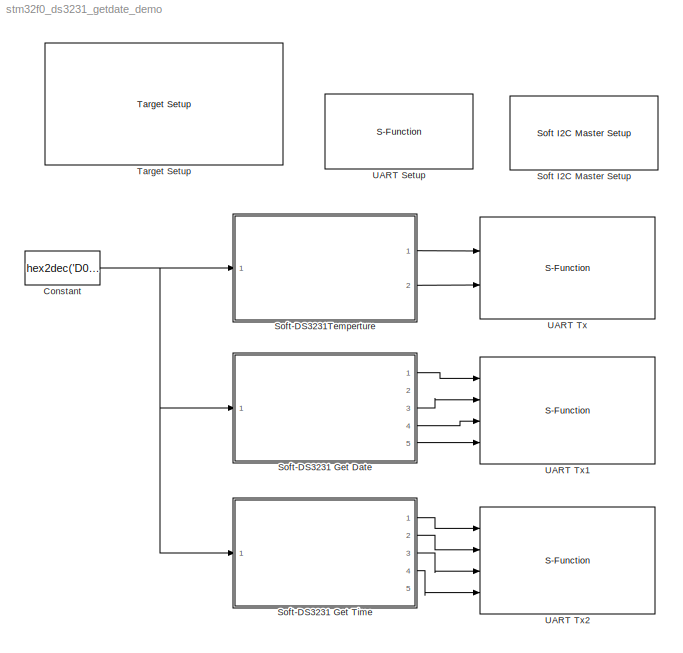
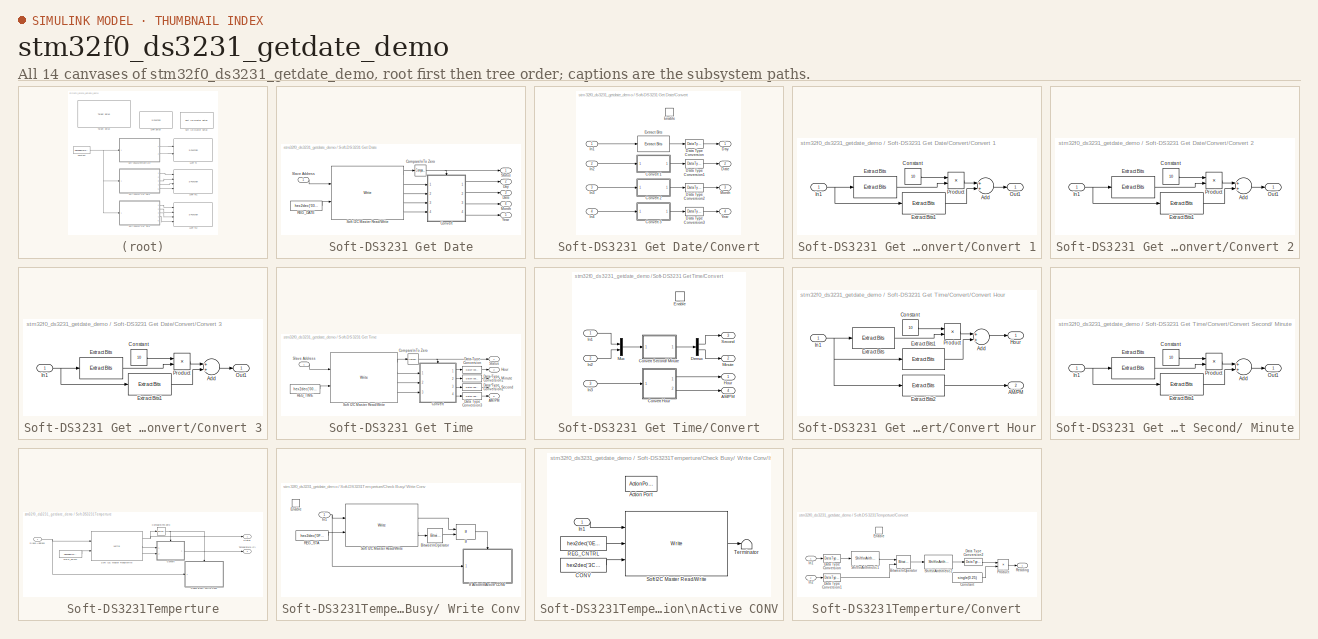
[diagram: thumbnail index - all 14 canvases of the model, root first then tree order]
MODEL stm32f0_ds3231_getdate_demo
KIND model
CONFIG PreLoadFcn = waijung.modelPreload; % Required for working with Waijung Blockset. Do not remove.
BLOCK [Constant] Constant
  OutDataType = fixdt(1, 16)
  OutDataTypeMode = uint8
  OutDataTypeStr = uint8
  OutScaling = 2^0
  SampleTime = 1
  Value = hex2dec('D0')
BLOCK [Reference] Soft I2C Master Setup  REF=waijung_soft_i2c_lib/Soft I2C Master Setup
  Ports = []
  SourceBlock = waijung_soft_i2c_lib/Soft I2C Master Setup
  SourceType = waijung_soft_i2c
  blockid = SoftI2CMasterSetup
  clk = 100
  compat = 0
  conf = Setup
  forcestop = off
  inputportlabel = {}
  inputporttype = []
  inputportwidth = []
  module = 1
  optionstring = [\"1\",\"100000\",\"9\",\"5\",\"4\",\"2\",\"25\",\"\",\"\",\"\",\"0\",\"1\",\"0\",\"0\",\"0\",\"0\",\"0\",\"0\",\"0\",\"\",\"1\",\"B\",\"7\",\"B\",\"6\"]
  outputportlabel = {}
  outputporttype = []
  outputportwidth = []
  portpinstr = 0
  readcount = 1
  sampletime = -1
  sclpins = 'B6'
  sdapins = 'B7'
  targetname = stm32f0
  timeout = 25
  transfer = Blocking
  waittime = 0
  writecount = 1
BLOCK [SubSystem] Soft-DS3231 Get Date
  FunctionWithSeparateData = off
  MaskCallbackString = |amg_high_precision_rtc_callback('module');
  MaskDisplay = text(0.5, 0.5, 'Port: I2C1','ver','middle','hor','center');port_label('input', 1,'SlvAddr');port_label('output', 1,'Status');port_label('output', 2,'Day(1-7)');port_label('output', 3,'Date(1-31)');port_label('output', 4,'Month(1-12)');port_label('output', 5,'Year(0-99)');
  MaskEnableString = on,on
  MaskHelp = web(fullfile(waijungdocroot,'DS3231_Get_Date.htm'), '-browser')
  MaskHideContents = off
  MaskIconFrame = on
  MaskIconOpaque = on
  MaskIconRotate = none
  MaskIconUnits = normalized
  MaskInitialization = amg_high_precision_rtc_callback('init');\n
  MaskPortRotate = default
  MaskPromptString = Function|I2C module
  MaskSelfModifiable = on
  MaskStyleString = popup(temp|time|date),popup(1|2|3|4|5|6|7|8|9|10|11|12|13|14|15|16|17|18|19|20|21|22|23|24|25|26|27|28|29|30|31|32)
  MaskTabNameString = ,
  MaskToolTipString = on,on
  MaskTunableValueString = on,on
  MaskType = amg_high_precision_rtc
  MaskValueString = date|1
  MaskVarAliasString = ,
  MaskVariables = blockfunction=@1;module=@2;
  MaskVisibilityString = off,on
  MinAlgLoopOccurrences = off
  Opaque = off
  Ports = [1, 5]
  PropExecContextOutsideSubsystem = off
  RTWSystemCode = Auto
  RequestExecContextInheritance = off
  ShowPortLabels = FromPortBlockName
BLOCK [Reference] Soft-DS3231 Get Date/Compare\nTo Zero  REF=simulink/Logic and Bit\nOperations/Compare\nTo Zero
  FunctionWithSeparateData = off
  LogicOutDataTypeMode = uint8
  Ports = [1, 1]
  RTWMemSecDataConstants = Inherit from model
  RTWMemSecDataInternal = Inherit from model
  RTWMemSecDataParameters = Inherit from model
  RTWMemSecFuncExecute = Inherit from model
  RTWMemSecFuncInitTerm = Inherit from model
  ShowPortLabels = FromPortIcon
  SourceBlock = simulink/Logic and Bit\nOperations/Compare\nTo Zero
  SourceType = Compare To Zero
  SystemSampleTime = -1
  ZeroCross = off
  relop = ==
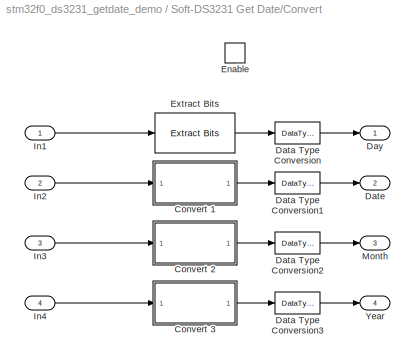
BLOCK [SubSystem] Soft-DS3231 Get Date/Convert
  FunctionWithSeparateData = off
  MaskHideContents = off
  MinAlgLoopOccurrences = off
  Opaque = off
  Ports = [4, 4, 1]
  PropExecContextOutsideSubsystem = off
  RTWSystemCode = Auto
  RequestExecContextInheritance = off
  TreatAsAtomicUnit = on
BLOCK [SubSystem] Soft-DS3231 Get Date/Convert/Convert 1
  FunctionWithSeparateData = off
  MaskHideContents = off
  MinAlgLoopOccurrences = off
  Opaque = off
  Ports = [1, 1]
  PropExecContextOutsideSubsystem = off
  RTWSystemCode = Auto
  RequestExecContextInheritance = off
BLOCK [Sum] Soft-DS3231 Get Date/Convert/Convert 1/Add
  InputSameDT = off
  OutDataType = fixdt(1, 16)
  OutDataTypeMode = Inherit via internal rule
  OutDataTypeStr = Inherit: Inherit via internal rule
  OutScaling = 2^-10
  Ports = [2, 1]
  SaturateOnIntegerOverflow = off
BLOCK [Constant] Soft-DS3231 Get Date/Convert/Convert 1/Constant
  OutDataType = fixdt(1, 16)
  OutDataTypeMode = uint8
  OutDataTypeStr = uint8
  OutScaling = 2^0
  Value = 10
BLOCK [Reference] Soft-DS3231 Get Date/Convert/Convert 1/Extract Bits  REF=simulink/Logic and Bit\nOperations/Extract Bits
  FunctionWithSeparateData = off
  Ports = [1, 1]
  RTWMemSecDataConstants = Inherit from model
  RTWMemSecDataInternal = Inherit from model
  RTWMemSecDataParameters = Inherit from model
  RTWMemSecFuncExecute = Inherit from model
  RTWMemSecFuncInitTerm = Inherit from model
  ShowPortLabels = FromPortIcon
  SourceBlock = simulink/Logic and Bit\nOperations/Extract Bits
  SourceType = Extract Bits
  SystemSampleTime = -1
  bitIdxRange = [4 5]
  bitsToExtract = Range of bits
  numBits = 8
  outScalingMode = Treat bit field as an integer
BLOCK [Reference] Soft-DS3231 Get Date/Convert/Convert 1/Extract Bits1  REF=simulink/Logic and Bit\nOperations/Extract Bits
  FunctionWithSeparateData = off
  Ports = [1, 1]
  RTWMemSecDataConstants = Inherit from model
  RTWMemSecDataInternal = Inherit from model
  RTWMemSecDataParameters = Inherit from model
  RTWMemSecFuncExecute = Inherit from model
  RTWMemSecFuncInitTerm = Inherit from model
  ShowPortLabels = FromPortIcon
  SourceBlock = simulink/Logic and Bit\nOperations/Extract Bits
  SourceType = Extract Bits
  SystemSampleTime = -1
  bitIdxRange = [0 3]
  bitsToExtract = Range of bits
  numBits = 8
  outScalingMode = Treat bit field as an integer
BLOCK [Inport] Soft-DS3231 Get Date/Convert/Convert 1/In1
  IconDisplay = Port number
BLOCK [Outport] Soft-DS3231 Get Date/Convert/Convert 1/Out1
  IconDisplay = Port number
BLOCK [Product] Soft-DS3231 Get Date/Convert/Convert 1/Product
  InputSameDT = off
  OutDataType = fixdt(1, 16)
  OutDataTypeMode = Inherit via internal rule
  OutDataTypeStr = Inherit: Inherit via internal rule
  OutScaling = 2^0
  Ports = [2, 1]
  SaturateOnIntegerOverflow = off
BLOCK [SubSystem] Soft-DS3231 Get Date/Convert/Convert 2
  FunctionWithSeparateData = off
  MaskHideContents = off
  MinAlgLoopOccurrences = off
  Opaque = off
  Ports = [1, 1]
  PropExecContextOutsideSubsystem = off
  RTWSystemCode = Auto
  RequestExecContextInheritance = off
BLOCK [Sum] Soft-DS3231 Get Date/Convert/Convert 2/Add
  InputSameDT = off
  OutDataType = fixdt(1, 16)
  OutDataTypeMode = Inherit via internal rule
  OutDataTypeStr = Inherit: Inherit via internal rule
  OutScaling = 2^-10
  Ports = [2, 1]
  SaturateOnIntegerOverflow = off
BLOCK [Constant] Soft-DS3231 Get Date/Convert/Convert 2/Constant
  OutDataType = fixdt(1, 16)
  OutDataTypeMode = uint8
  OutDataTypeStr = uint8
  OutScaling = 2^0
  Value = 10
BLOCK [Reference] Soft-DS3231 Get Date/Convert/Convert 2/Extract Bits  REF=simulink/Logic and Bit\nOperations/Extract Bits
  FunctionWithSeparateData = off
  Ports = [1, 1]
  RTWMemSecDataConstants = Inherit from model
  RTWMemSecDataInternal = Inherit from model
  RTWMemSecDataParameters = Inherit from model
  RTWMemSecFuncExecute = Inherit from model
  RTWMemSecFuncInitTerm = Inherit from model
  ShowPortLabels = FromPortIcon
  SourceBlock = simulink/Logic and Bit\nOperations/Extract Bits
  SourceType = Extract Bits
  SystemSampleTime = -1
  bitIdxRange = [4 4]
  bitsToExtract = Range of bits
  numBits = 8
  outScalingMode = Treat bit field as an integer
BLOCK [Reference] Soft-DS3231 Get Date/Convert/Convert 2/Extract Bits1  REF=simulink/Logic and Bit\nOperations/Extract Bits
  FunctionWithSeparateData = off
  Ports = [1, 1]
  RTWMemSecDataConstants = Inherit from model
  RTWMemSecDataInternal = Inherit from model
  RTWMemSecDataParameters = Inherit from model
  RTWMemSecFuncExecute = Inherit from model
  RTWMemSecFuncInitTerm = Inherit from model
  ShowPortLabels = FromPortIcon
  SourceBlock = simulink/Logic and Bit\nOperations/Extract Bits
  SourceType = Extract Bits
  SystemSampleTime = -1
  bitIdxRange = [0 3]
  bitsToExtract = Range of bits
  numBits = 8
  outScalingMode = Treat bit field as an integer
BLOCK [Inport] Soft-DS3231 Get Date/Convert/Convert 2/In1
  IconDisplay = Port number
BLOCK [Outport] Soft-DS3231 Get Date/Convert/Convert 2/Out1
  IconDisplay = Port number
BLOCK [Product] Soft-DS3231 Get Date/Convert/Convert 2/Product
  InputSameDT = off
  OutDataType = fixdt(1, 16)
  OutDataTypeMode = Inherit via internal rule
  OutDataTypeStr = Inherit: Inherit via internal rule
  OutScaling = 2^0
  Ports = [2, 1]
  SaturateOnIntegerOverflow = off
BLOCK [SubSystem] Soft-DS3231 Get Date/Convert/Convert 3
  FunctionWithSeparateData = off
  MaskHideContents = off
  MinAlgLoopOccurrences = off
  Opaque = off
  Ports = [1, 1]
  PropExecContextOutsideSubsystem = off
  RTWSystemCode = Auto
  RequestExecContextInheritance = off
BLOCK [Sum] Soft-DS3231 Get Date/Convert/Convert 3/Add
  InputSameDT = off
  OutDataType = fixdt(1, 16)
  OutDataTypeMode = Inherit via internal rule
  OutDataTypeStr = Inherit: Inherit via internal rule
  OutScaling = 2^-10
  Ports = [2, 1]
  SaturateOnIntegerOverflow = off
BLOCK [Constant] Soft-DS3231 Get Date/Convert/Convert 3/Constant
  OutDataType = fixdt(1, 16)
  OutDataTypeMode = uint8
  OutDataTypeStr = uint8
  OutScaling = 2^0
  Value = 10
BLOCK [Reference] Soft-DS3231 Get Date/Convert/Convert 3/Extract Bits  REF=simulink/Logic and Bit\nOperations/Extract Bits
  FunctionWithSeparateData = off
  Ports = [1, 1]
  RTWMemSecDataConstants = Inherit from model
  RTWMemSecDataInternal = Inherit from model
  RTWMemSecDataParameters = Inherit from model
  RTWMemSecFuncExecute = Inherit from model
  RTWMemSecFuncInitTerm = Inherit from model
  ShowPortLabels = FromPortIcon
  SourceBlock = simulink/Logic and Bit\nOperations/Extract Bits
  SourceType = Extract Bits
  SystemSampleTime = -1
  bitIdxRange = [4 7]
  bitsToExtract = Range of bits
  numBits = 8
  outScalingMode = Treat bit field as an integer
BLOCK [Reference] Soft-DS3231 Get Date/Convert/Convert 3/Extract Bits1  REF=simulink/Logic and Bit\nOperations/Extract Bits
  FunctionWithSeparateData = off
  Ports = [1, 1]
  RTWMemSecDataConstants = Inherit from model
  RTWMemSecDataInternal = Inherit from model
  RTWMemSecDataParameters = Inherit from model
  RTWMemSecFuncExecute = Inherit from model
  RTWMemSecFuncInitTerm = Inherit from model
  ShowPortLabels = FromPortIcon
  SourceBlock = simulink/Logic and Bit\nOperations/Extract Bits
  SourceType = Extract Bits
  SystemSampleTime = -1
  bitIdxRange = [0 3]
  bitsToExtract = Range of bits
  numBits = 8
  outScalingMode = Treat bit field as an integer
BLOCK [Inport] Soft-DS3231 Get Date/Convert/Convert 3/In1
  IconDisplay = Port number
BLOCK [Outport] Soft-DS3231 Get Date/Convert/Convert 3/Out1
  IconDisplay = Port number
BLOCK [Product] Soft-DS3231 Get Date/Convert/Convert 3/Product
  InputSameDT = off
  OutDataType = fixdt(1, 16)
  OutDataTypeMode = Inherit via internal rule
  OutDataTypeStr = Inherit: Inherit via internal rule
  OutScaling = 2^0
  Ports = [2, 1]
  SaturateOnIntegerOverflow = off
BLOCK [DataTypeConversion] Soft-DS3231 Get Date/Convert/Data Type Conversion
  OutDataType = fixdt(1, 16)
  OutDataTypeMode = uint8
  OutDataTypeStr = uint8
  OutScaling = 2^0
  RndMeth = Floor
  SaturateOnIntegerOverflow = off
BLOCK [DataTypeConversion] Soft-DS3231 Get Date/Convert/Data Type Conversion1
  OutDataType = fixdt(1, 16)
  OutDataTypeMode = uint8
  OutDataTypeStr = uint8
  OutScaling = 2^0
  RndMeth = Floor
  SaturateOnIntegerOverflow = off
BLOCK [DataTypeConversion] Soft-DS3231 Get Date/Convert/Data Type Conversion2
  OutDataType = fixdt(1, 16)
  OutDataTypeMode = uint8
  OutDataTypeStr = uint8
  OutScaling = 2^0
  RndMeth = Floor
  SaturateOnIntegerOverflow = off
BLOCK [DataTypeConversion] Soft-DS3231 Get Date/Convert/Data Type Conversion3
  OutDataType = fixdt(1, 16)
  OutDataTypeMode = uint8
  OutDataTypeStr = uint8
  OutScaling = 2^0
  RndMeth = Floor
  SaturateOnIntegerOverflow = off
BLOCK [Outport] Soft-DS3231 Get Date/Convert/Date
  IconDisplay = Port number
  OutDataType = fixdt(1, 16)
  OutScaling = 2^0
  Port = 2
BLOCK [Outport] Soft-DS3231 Get Date/Convert/Day
  IconDisplay = Port number
  OutDataType = fixdt(1, 16)
  OutScaling = 2^0
BLOCK [EnablePort] Soft-DS3231 Get Date/Convert/Enable
  Ports = []
BLOCK [Reference] Soft-DS3231 Get Date/Convert/Extract Bits  REF=simulink/Logic and Bit\nOperations/Extract Bits
  FunctionWithSeparateData = off
  Ports = [1, 1]
  RTWMemSecDataConstants = Inherit from model
  RTWMemSecDataInternal = Inherit from model
  RTWMemSecDataParameters = Inherit from model
  RTWMemSecFuncExecute = Inherit from model
  RTWMemSecFuncInitTerm = Inherit from model
  ShowPortLabels = FromPortIcon
  SourceBlock = simulink/Logic and Bit\nOperations/Extract Bits
  SourceType = Extract Bits
  SystemSampleTime = -1
  bitIdxRange = [0 3]
  bitsToExtract = Range of bits
  numBits = 8
  outScalingMode = Treat bit field as an integer
BLOCK [Inport] Soft-DS3231 Get Date/Convert/In1
  IconDisplay = Port number
  OutDataType = fixdt(1, 16)
  OutScaling = 2^0
BLOCK [Inport] Soft-DS3231 Get Date/Convert/In2
  IconDisplay = Port number
  OutDataType = fixdt(1, 16)
  OutScaling = 2^0
  Port = 2
BLOCK [Inport] Soft-DS3231 Get Date/Convert/In3
  IconDisplay = Port number
  OutDataType = fixdt(1, 16)
  OutScaling = 2^0
  Port = 3
BLOCK [Inport] Soft-DS3231 Get Date/Convert/In4
  IconDisplay = Port number
  OutDataType = fixdt(1, 16)
  OutScaling = 2^0
  Port = 4
BLOCK [Outport] Soft-DS3231 Get Date/Convert/Month
  IconDisplay = Port number
  OutDataType = fixdt(1, 16)
  OutScaling = 2^0
  Port = 3
BLOCK [Outport] Soft-DS3231 Get Date/Convert/Year
  IconDisplay = Port number
  OutDataType = fixdt(1, 16)
  OutScaling = 2^0
  Port = 4
BLOCK [Outport] Soft-DS3231 Get Date/Date
  IconDisplay = Port number
  Port = 3
BLOCK [Outport] Soft-DS3231 Get Date/Day
  IconDisplay = Port number
  Port = 2
BLOCK [Outport] Soft-DS3231 Get Date/Month
  IconDisplay = Port number
  Port = 4
BLOCK [Constant] Soft-DS3231 Get Date/REG_DATE
  OutDataType = fixdt(1, 16)
  OutDataTypeMode = uint8
  OutDataTypeStr = uint8
  OutScaling = 2^0
  Value = hex2dec('03')
BLOCK [Inport] Soft-DS3231 Get Date/Slave Address
  IconDisplay = Port number
  OutDataType = fixdt(1, 16)
  OutScaling = 2^0
BLOCK [Reference] Soft-DS3231 Get Date/Soft I2C Master Read//Write  REF=waijung_soft_i2c_lib/Soft I2C Master Read//Write
  Ports = [2, 5]
  SourceBlock = waijung_soft_i2c_lib/Soft I2C Master Read//Write
  SourceType = waijung_soft_i2c
  blockid = SoftDS3231GetDateSoftI2CMasterReadWrite
  clk = 100
  compat = 0
  conf = ReadWrite
  forcestop = off
  inputportlabel = {'SlvAddr' 'Wr0 (uint8)'}
  inputporttype = [3 3]
  inputportwidth = []
  module = 1
  optionstring = [\"1\",\"1\",\"4\",\"0\",\"off\",\"1\"]
  outputportlabel = {'Status' 'Rd0 (uint8)' 'Rd1 (uint8)' 'Rd2 (uint8)' 'Rd3 (uint8)'}
  outputporttype = [3 3 3 3 3    ]
  outputportwidth = [1 1 1 1 1]
  portpinstr = 0
  readcount = 4
  sampletime = -1
  sclpins = 'A5'
  sdapins = {'A4','A6'}
  targetname = stm32f0
  timeout = 25
  transfer = Blocking
  waittime = 0
  writecount = 1
BLOCK [Outport] Soft-DS3231 Get Date/Status
  IconDisplay = Port number
BLOCK [Outport] Soft-DS3231 Get Date/Year
  IconDisplay = Port number
  Port = 5
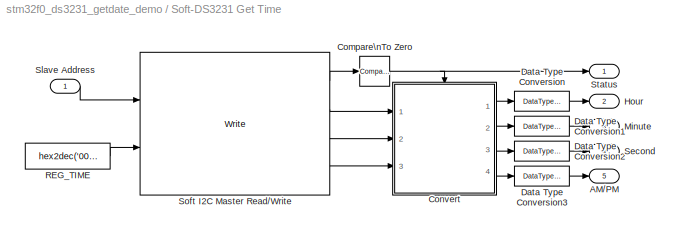
BLOCK [SubSystem] Soft-DS3231 Get Time
  FunctionWithSeparateData = off
  MaskCallbackString = |amg_high_precision_rtc_callback('module');
  MaskDisplay = text(0.5, 0.5, 'Port: I2C1','ver','middle','hor','center');port_label('input', 1,'SlvAddr');port_label('output', 1,'Status');port_label('output', 2,'Hour(0-11/23)');port_label('output', 3,'Minute(0-59)');port_label('output', 4,'Second(0-59)');port_label('output', 5,'AM(0)/PM(1)');
  MaskEnableString = on,on
  MaskHelp = web(fullfile(waijungdocroot,'DS3231_Get_Time.htm'), '-browser')
  MaskHideContents = off
  MaskIconFrame = on
  MaskIconOpaque = on
  MaskIconRotate = none
  MaskIconUnits = normalized
  MaskInitialization = amg_high_precision_rtc_callback('init');\n
  MaskPortRotate = default
  MaskPromptString = Function|I2C module
  MaskSelfModifiable = on
  MaskStyleString = popup(temp|time|date),popup(1|2|3|4|5|6|7|8|9|10|11|12|13|14|15|16|17|18|19|20|21|22|23|24|25|26|27|28|29|30|31|32)
  MaskTabNameString = ,
  MaskToolTipString = on,on
  MaskTunableValueString = on,on
  MaskType = amg_high_precision_rtc
  MaskValueString = time|1
  MaskVarAliasString = ,
  MaskVariables = blockfunction=@1;module=@2;
  MaskVisibilityString = off,on
  MinAlgLoopOccurrences = off
  Opaque = off
  Ports = [1, 5]
  PropExecContextOutsideSubsystem = off
  RTWSystemCode = Auto
  RequestExecContextInheritance = off
  ShowPortLabels = FromPortBlockName
BLOCK [Outport] Soft-DS3231 Get Time/AM//PM
  IconDisplay = Port number
  Port = 5
BLOCK [Reference] Soft-DS3231 Get Time/Compare\nTo Zero  REF=simulink/Logic and Bit\nOperations/Compare\nTo Zero
  FunctionWithSeparateData = off
  LogicOutDataTypeMode = uint8
  Ports = [1, 1]
  RTWMemSecDataConstants = Inherit from model
  RTWMemSecDataInternal = Inherit from model
  RTWMemSecDataParameters = Inherit from model
  RTWMemSecFuncExecute = Inherit from model
  RTWMemSecFuncInitTerm = Inherit from model
  ShowPortLabels = FromPortIcon
  SourceBlock = simulink/Logic and Bit\nOperations/Compare\nTo Zero
  SourceType = Compare To Zero
  SystemSampleTime = -1
  ZeroCross = off
  relop = ==
BLOCK [SubSystem] Soft-DS3231 Get Time/Convert
  FunctionWithSeparateData = off
  MaskHideContents = off
  MinAlgLoopOccurrences = off
  Opaque = off
  Ports = [3, 4, 1]
  PropExecContextOutsideSubsystem = off
  RTWSystemCode = Auto
  RequestExecContextInheritance = off
  TreatAsAtomicUnit = on
BLOCK [Outport] Soft-DS3231 Get Time/Convert/AM//PM
  IconDisplay = Port number
  OutDataType = fixdt(1, 16)
  OutScaling = 2^0
  Port = 4
BLOCK [SubSystem] Soft-DS3231 Get Time/Convert/Convert Hour
  FunctionWithSeparateData = off
  MaskHideContents = off
  MinAlgLoopOccurrences = off
  Opaque = off
  Ports = [1, 2]
  PropExecContextOutsideSubsystem = off
  RTWSystemCode = Auto
  RequestExecContextInheritance = off
BLOCK [Outport] Soft-DS3231 Get Time/Convert/Convert Hour/AM//PM
  IconDisplay = Port number
  Port = 2
BLOCK [Sum] Soft-DS3231 Get Time/Convert/Convert Hour/Add
  InputSameDT = off
  OutDataType = fixdt(1, 16)
  OutDataTypeMode = Inherit via internal rule
  OutDataTypeStr = Inherit: Inherit via internal rule
  OutScaling = 2^-10
  Ports = [2, 1]
  SaturateOnIntegerOverflow = off
BLOCK [Constant] Soft-DS3231 Get Time/Convert/Convert Hour/Constant
  OutDataType = fixdt(1, 16)
  OutDataTypeMode = uint8
  OutDataTypeStr = uint8
  OutScaling = 2^0
  Value = 10
BLOCK [Reference] Soft-DS3231 Get Time/Convert/Convert Hour/Extract Bits  REF=simulink/Logic and Bit\nOperations/Extract Bits
  FunctionWithSeparateData = off
  Ports = [1, 1]
  RTWMemSecDataConstants = Inherit from model
  RTWMemSecDataInternal = Inherit from model
  RTWMemSecDataParameters = Inherit from model
  RTWMemSecFuncExecute = Inherit from model
  RTWMemSecFuncInitTerm = Inherit from model
  ShowPortLabels = FromPortIcon
  SourceBlock = simulink/Logic and Bit\nOperations/Extract Bits
  SourceType = Extract Bits
  SystemSampleTime = -1
  bitIdxRange = [4 5]
  bitsToExtract = Range of bits
  numBits = 8
  outScalingMode = Treat bit field as an integer
BLOCK [Reference] Soft-DS3231 Get Time/Convert/Convert Hour/Extract Bits1  REF=simulink/Logic and Bit\nOperations/Extract Bits
  FunctionWithSeparateData = off
  Ports = [1, 1]
  RTWMemSecDataConstants = Inherit from model
  RTWMemSecDataInternal = Inherit from model
  RTWMemSecDataParameters = Inherit from model
  RTWMemSecFuncExecute = Inherit from model
  RTWMemSecFuncInitTerm = Inherit from model
  ShowPortLabels = FromPortIcon
  SourceBlock = simulink/Logic and Bit\nOperations/Extract Bits
  SourceType = Extract Bits
  SystemSampleTime = -1
  bitIdxRange = [0 3]
  bitsToExtract = Range of bits
  numBits = 8
  outScalingMode = Treat bit field as an integer
BLOCK [Reference] Soft-DS3231 Get Time/Convert/Convert Hour/Extract Bits2  REF=simulink/Logic and Bit\nOperations/Extract Bits
  FunctionWithSeparateData = off
  Ports = [1, 1]
  RTWMemSecDataConstants = Inherit from model
  RTWMemSecDataInternal = Inherit from model
  RTWMemSecDataParameters = Inherit from model
  RTWMemSecFuncExecute = Inherit from model
  RTWMemSecFuncInitTerm = Inherit from model
  ShowPortLabels = FromPortIcon
  SourceBlock = simulink/Logic and Bit\nOperations/Extract Bits
  SourceType = Extract Bits
  SystemSampleTime = -1
  bitIdxRange = [5 5]
  bitsToExtract = Range of bits
  numBits = 8
  outScalingMode = Treat bit field as an integer
BLOCK [Outport] Soft-DS3231 Get Time/Convert/Convert Hour/Hour
  IconDisplay = Port number
BLOCK [Inport] Soft-DS3231 Get Time/Convert/Convert Hour/In1
  IconDisplay = Port number
BLOCK [Product] Soft-DS3231 Get Time/Convert/Convert Hour/Product
  InputSameDT = off
  OutDataType = fixdt(1, 16)
  OutDataTypeMode = Inherit via internal rule
  OutDataTypeStr = Inherit: Inherit via internal rule
  OutScaling = 2^0
  Ports = [2, 1]
  SaturateOnIntegerOverflow = off
BLOCK [SubSystem] Soft-DS3231 Get Time/Convert/Convert Second// Minute
  FunctionWithSeparateData = off
  MaskHideContents = off
  MinAlgLoopOccurrences = off
  Opaque = off
  Ports = [1, 1]
  PropExecContextOutsideSubsystem = off
  RTWSystemCode = Auto
  RequestExecContextInheritance = off
BLOCK [Sum] Soft-DS3231 Get Time/Convert/Convert Second// Minute/Add
  InputSameDT = off
  OutDataType = fixdt(1, 16)
  OutDataTypeMode = Inherit via internal rule
  OutDataTypeStr = Inherit: Inherit via internal rule
  OutScaling = 2^-10
  Ports = [2, 1]
  SaturateOnIntegerOverflow = off
BLOCK [Constant] Soft-DS3231 Get Time/Convert/Convert Second// Minute/Constant
  OutDataType = fixdt(1, 16)
  OutDataTypeMode = uint8
  OutDataTypeStr = uint8
  OutScaling = 2^0
  Value = 10
BLOCK [Reference] Soft-DS3231 Get Time/Convert/Convert Second// Minute/Extract Bits  REF=simulink/Logic and Bit\nOperations/Extract Bits
  FunctionWithSeparateData = off
  Ports = [1, 1]
  RTWMemSecDataConstants = Inherit from model
  RTWMemSecDataInternal = Inherit from model
  RTWMemSecDataParameters = Inherit from model
  RTWMemSecFuncExecute = Inherit from model
  RTWMemSecFuncInitTerm = Inherit from model
  ShowPortLabels = FromPortIcon
  SourceBlock = simulink/Logic and Bit\nOperations/Extract Bits
  SourceType = Extract Bits
  SystemSampleTime = -1
  bitIdxRange = [4 6]
  bitsToExtract = Range of bits
  numBits = 8
  outScalingMode = Treat bit field as an integer
BLOCK [Reference] Soft-DS3231 Get Time/Convert/Convert Second// Minute/Extract Bits1  REF=simulink/Logic and Bit\nOperations/Extract Bits
  FunctionWithSeparateData = off
  Ports = [1, 1]
  RTWMemSecDataConstants = Inherit from model
  RTWMemSecDataInternal = Inherit from model
  RTWMemSecDataParameters = Inherit from model
  RTWMemSecFuncExecute = Inherit from model
  RTWMemSecFuncInitTerm = Inherit from model
  ShowPortLabels = FromPortIcon
  SourceBlock = simulink/Logic and Bit\nOperations/Extract Bits
  SourceType = Extract Bits
  SystemSampleTime = -1
  bitIdxRange = [0 3]
  bitsToExtract = Range of bits
  numBits = 8
  outScalingMode = Treat bit field as an integer
BLOCK [Inport] Soft-DS3231 Get Time/Convert/Convert Second// Minute/In1
  IconDisplay = Port number
BLOCK [Outport] Soft-DS3231 Get Time/Convert/Convert Second// Minute/Out1
  IconDisplay = Port number
BLOCK [Product] Soft-DS3231 Get Time/Convert/Convert Second// Minute/Product
  InputSameDT = off
  OutDataType = fixdt(1, 16)
  OutDataTypeMode = Inherit via internal rule
  OutDataTypeStr = Inherit: Inherit via internal rule
  OutScaling = 2^0
  Ports = [2, 1]
  SaturateOnIntegerOverflow = off
BLOCK [Demux] Soft-DS3231 Get Time/Convert/Demux
  DisplayOption = bar
  Outputs = 2
  Ports = [1, 2]
BLOCK [EnablePort] Soft-DS3231 Get Time/Convert/Enable
  Ports = []
BLOCK [Outport] Soft-DS3231 Get Time/Convert/Hour
  IconDisplay = Port number
  OutDataType = fixdt(1, 16)
  OutScaling = 2^0
BLOCK [Inport] Soft-DS3231 Get Time/Convert/In1
  IconDisplay = Port number
  OutDataType = fixdt(1, 16)
  OutScaling = 2^0
BLOCK [Inport] Soft-DS3231 Get Time/Convert/In2
  IconDisplay = Port number
  OutDataType = fixdt(1, 16)
  OutScaling = 2^0
  Port = 2
BLOCK [Inport] Soft-DS3231 Get Time/Convert/In3
  IconDisplay = Port number
  OutDataType = fixdt(1, 16)
  OutScaling = 2^0
  Port = 3
BLOCK [Outport] Soft-DS3231 Get Time/Convert/Minute
  IconDisplay = Port number
  OutDataType = fixdt(1, 16)
  OutScaling = 2^0
  Port = 2
BLOCK [Mux] Soft-DS3231 Get Time/Convert/Mux
  DisplayOption = bar
  Inputs = 2
  Ports = [2, 1]
BLOCK [Outport] Soft-DS3231 Get Time/Convert/Second
  IconDisplay = Port number
  OutDataType = fixdt(1, 16)
  OutScaling = 2^0
  Port = 3
BLOCK [DataTypeConversion] Soft-DS3231 Get Time/Data Type Conversion
  OutDataType = fixdt(1, 16)
  OutDataTypeMode = uint8
  OutDataTypeStr = uint8
  OutScaling = 2^0
  RndMeth = Floor
  SaturateOnIntegerOverflow = off
BLOCK [DataTypeConversion] Soft-DS3231 Get Time/Data Type Conversion1
  OutDataType = fixdt(1, 16)
  OutDataTypeMode = uint8
  OutDataTypeStr = uint8
  OutScaling = 2^0
  RndMeth = Floor
  SaturateOnIntegerOverflow = off
BLOCK [DataTypeConversion] Soft-DS3231 Get Time/Data Type Conversion2
  OutDataType = fixdt(1, 16)
  OutDataTypeMode = uint8
  OutDataTypeStr = uint8
  OutScaling = 2^0
  RndMeth = Floor
  SaturateOnIntegerOverflow = off
BLOCK [DataTypeConversion] Soft-DS3231 Get Time/Data Type Conversion3
  OutDataType = fixdt(1, 16)
  OutDataTypeMode = uint8
  OutDataTypeStr = uint8
  OutScaling = 2^0
  RndMeth = Floor
  SaturateOnIntegerOverflow = off
BLOCK [Outport] Soft-DS3231 Get Time/Hour
  IconDisplay = Port number
  Port = 2
BLOCK [Outport] Soft-DS3231 Get Time/Minute
  IconDisplay = Port number
  Port = 3
BLOCK [Constant] Soft-DS3231 Get Time/REG_TIME
  OutDataType = fixdt(1, 16)
  OutDataTypeMode = uint8
  OutDataTypeStr = uint8
  OutScaling = 2^0
  Value = hex2dec('00')
BLOCK [Outport] Soft-DS3231 Get Time/Second
  IconDisplay = Port number
  Port = 4
BLOCK [Inport] Soft-DS3231 Get Time/Slave Address
  IconDisplay = Port number
  OutDataType = fixdt(1, 16)
  OutScaling = 2^0
BLOCK [Reference] Soft-DS3231 Get Time/Soft I2C Master Read//Write  REF=waijung_soft_i2c_lib/Soft I2C Master Read//Write
  Ports = [2, 4]
  SourceBlock = waijung_soft_i2c_lib/Soft I2C Master Read//Write
  SourceType = waijung_soft_i2c
  blockid = SoftDS3231GetTimeSoftI2CMasterReadWrite
  clk = 100
  compat = 0
  conf = ReadWrite
  forcestop = off
  inputportlabel = {'SlvAddr' 'Wr0 (uint8)'}
  inputporttype = [3 3]
  inputportwidth = []
  module = 1
  optionstring = [\"1\",\"1\",\"3\",\"0\",\"off\",\"1\"]
  outputportlabel = {'Status' 'Rd0 (uint8)' 'Rd1 (uint8)' 'Rd2 (uint8)'}
  outputporttype = [3 3 3 3   ]
  outputportwidth = [1 1 1 1]
  portpinstr = 0
  readcount = 3
  sampletime = -1
  sclpins = 'A5'
  sdapins = {'A4','A6'}
  targetname = stm32f0
  timeout = 25
  transfer = Blocking
  waittime = 0
  writecount = 1
BLOCK [Outport] Soft-DS3231 Get Time/Status
  IconDisplay = Port number
BLOCK [SubSystem] Soft-DS3231Temperture
  FunctionWithSeparateData = off
  MaskCallbackString = |amg_high_precision_rtc_callback('module');
  MaskDescription = The block implement temperature reading from DS3231 (Extremely Accurate RTC).\nIts override the CONV bit, to force the temperature update, so the recommend sample time for this block is more than 0.5 seconds.\nTo get reading value from DS3231 device, this block generate 3 transaction of I2C as below:\n1. Read 2 bytes data from register 0x11 and 0x12 (Sequential read).\n2. Read 1 byte data from reg...<+119ch>
  MaskDisplay = text(0.5, 0.5, 'Port: I2C1','ver','middle','hor','center');port_label('input', 1,'SlvAddr');port_label('output', 1,'Status');port_label('output', 2,'Temp (C)');
  MaskEnableString = off,on
  MaskHelp = web(fullfile(waijungdocroot,'DS3231Temperture.htm'), '-browser')
  MaskHideContents = off
  MaskIconFrame = on
  MaskIconOpaque = on
  MaskIconRotate = none
  MaskIconUnits = normalized
  MaskInitialization = amg_high_precision_rtc_callback('init');\n
  MaskPortRotate = default
  MaskPromptString = Function|I2C module
  MaskSelfModifiable = on
  MaskStyleString = popup(temp|time|date),popup(1|2|3|4|5|6|7|8|9|10|11|12|13|14|15|16|17|18|19|20|21|22|23|24|25|26|27|28|29|30|31|32)
  MaskTabNameString = ,
  MaskToolTipString = on,on
  MaskTunableValueString = on,on
  MaskType = amg_high_precision_rtc
  MaskValueString = temp|1
  MaskVarAliasString = ,
  MaskVariables = blockfunction=@1;module=@2;
  MaskVisibilityString = off,on
  MinAlgLoopOccurrences = off
  Opaque = off
  Ports = [1, 2]
  PropExecContextOutsideSubsystem = off
  RTWSystemCode = Auto
  RequestExecContextInheritance = off
  ShowPortLabels = FromPortBlockName
BLOCK [SubSystem] Soft-DS3231Temperture/Check Busy// Write Conv
  FunctionWithSeparateData = off
  MaskHideContents = off
  MinAlgLoopOccurrences = off
  Opaque = off
  Ports = [1, 0, 1]
  PropExecContextOutsideSubsystem = off
  RTWSystemCode = Auto
  RequestExecContextInheritance = off
BLOCK [Reference] Soft-DS3231Temperture/Check Busy// Write Conv/Bitwise\nOperator  REF=simulink/Logic and Bit\nOperations/Bitwise\nOperator
  BitMask = hex2dec('04')
  BitMaskRealWorld = Stored Integer
  NumInputPorts = 1
  Ports = [1, 1]
  SourceBlock = simulink/Logic and Bit\nOperations/Bitwise\nOperator
  SourceType = Bitwise Operator
  UseBitMask = on
  logicop = AND
BLOCK [EnablePort] Soft-DS3231Temperture/Check Busy// Write Conv/Enable
  Ports = []
BLOCK [If] Soft-DS3231Temperture/Check Busy// Write Conv/If
  IfExpression = (u1 == 0) & (u2 == 0)
  NumInputs = 2
  Ports = [2, 1]
  ShowElse = off
BLOCK [SubSystem] Soft-DS3231Temperture/Check Busy// Write Conv/If Action\nActive CONV
  FunctionWithSeparateData = off
  MaskHideContents = off
  MinAlgLoopOccurrences = off
  Opaque = off
  Ports = [1, 0, 0, 0, 0, 0, 0, 1]
  PropExecContextOutsideSubsystem = off
  RTWSystemCode = Auto
  RequestExecContextInheritance = off
  TreatAsAtomicUnit = on
BLOCK [ActionPort] Soft-DS3231Temperture/Check Busy// Write Conv/If Action\nActive CONV/Action Port
  ActionType = then
BLOCK [Constant] Soft-DS3231Temperture/Check Busy// Write Conv/If Action\nActive CONV/CONV
  OutDataType = fixdt(1, 16)
  OutDataTypeMode = uint8
  OutDataTypeStr = uint8
  OutScaling = 2^0
  Value = hex2dec('3C')
BLOCK [Inport] Soft-DS3231Temperture/Check Busy// Write Conv/If Action\nActive CONV/In1
  IconDisplay = Port number
  OutDataType = fixdt(1, 16)
  OutScaling = 2^0
BLOCK [Constant] Soft-DS3231Temperture/Check Busy// Write Conv/If Action\nActive CONV/REG_CNTRL
  OutDataType = fixdt(1, 16)
  OutDataTypeMode = uint8
  OutDataTypeStr = uint8
  OutScaling = 2^0
  Value = hex2dec('0E')
BLOCK [Reference] Soft-DS3231Temperture/Check Busy// Write Conv/If Action\nActive CONV/Soft I2C Master Read//Write  REF=waijung_soft_i2c_lib/Soft I2C Master Read//Write
  Ports = [3, 1]
  SourceBlock = waijung_soft_i2c_lib/Soft I2C Master Read//Write
  SourceType = waijung_soft_i2c
  blockid = SoftDS3231TempertureCheckBusyWriteConvIfActionActiveCONVSoftI2CMasterReadWrite
  clk = 100
  compat = 0
  conf = ReadWrite
  forcestop = off
  inputportlabel = {'SlvAddr' 'Wr0 (uint8)' 'Wr1 (uint8)'}
  inputporttype = [3 3 3]
  inputportwidth = []
  module = 1
  optionstring = [\"1\",\"2\",\"0\",\"0\",\"off\",\"1\"]
  outputportlabel = {'Status'}
  outputporttype = [3]
  outputportwidth = [1]
  portpinstr = 0
  readcount = 0
  sampletime = -1
  sclpins = 'A5'
  sdapins = {'A4','A6'}
  targetname = stm32f0
  timeout = 25
  transfer = Blocking
  waittime = 0
  writecount = 2
BLOCK [Terminator] Soft-DS3231Temperture/Check Busy// Write Conv/If Action\nActive CONV/Terminator
BLOCK [Inport] Soft-DS3231Temperture/Check Busy// Write Conv/In1
  IconDisplay = Port number
BLOCK [Constant] Soft-DS3231Temperture/Check Busy// Write Conv/REG_STA
  OutDataType = fixdt(1, 16)
  OutDataTypeMode = uint8
  OutDataTypeStr = uint8
  OutScaling = 2^0
  Value = hex2dec('0F')
BLOCK [Reference] Soft-DS3231Temperture/Check Busy// Write Conv/Soft I2C Master Read//Write  REF=waijung_soft_i2c_lib/Soft I2C Master Read//Write
  Ports = [2, 2]
  SourceBlock = waijung_soft_i2c_lib/Soft I2C Master Read//Write
  SourceType = waijung_soft_i2c
  blockid = SoftDS3231TempertureCheckBusyWriteConvSoftI2CMasterReadWrite
  clk = 100
  compat = 0
  conf = ReadWrite
  forcestop = off
  inputportlabel = {'SlvAddr' 'Wr0 (uint8)'}
  inputporttype = [3 3]
  inputportwidth = []
  module = 1
  optionstring = [\"1\",\"1\",\"1\",\"0\",\"off\",\"1\"]
  outputportlabel = {'Status' 'Rd0 (uint8)'}
  outputporttype = [3 3 ]
  outputportwidth = [1 1]
  portpinstr = 0
  readcount = 1
  sampletime = -1
  sclpins = 'A5'
  sdapins = {'A4','A6'}
  targetname = stm32f0
  timeout = 25
  transfer = Blocking
  waittime = 0
  writecount = 1
BLOCK [Reference] Soft-DS3231Temperture/Compare\nTo Zero  REF=simulink/Logic and Bit\nOperations/Compare\nTo Zero
  FunctionWithSeparateData = off
  LogicOutDataTypeMode = uint8
  Ports = [1, 1]
  RTWMemSecDataConstants = Inherit from model
  RTWMemSecDataInternal = Inherit from model
  RTWMemSecDataParameters = Inherit from model
  RTWMemSecFuncExecute = Inherit from model
  RTWMemSecFuncInitTerm = Inherit from model
  ShowPortLabels = FromPortIcon
  SourceBlock = simulink/Logic and Bit\nOperations/Compare\nTo Zero
  SourceType = Compare To Zero
  SystemSampleTime = -1
  ZeroCross = off
  relop = ==
BLOCK [SubSystem] Soft-DS3231Temperture/Convert
  FunctionWithSeparateData = off
  MaskHideContents = off
  MinAlgLoopOccurrences = off
  Opaque = off
  Ports = [2, 1, 1]
  PropExecContextOutsideSubsystem = off
  RTWSystemCode = Auto
  RequestExecContextInheritance = off
  TreatAsAtomicUnit = on
BLOCK [Reference] Soft-DS3231Temperture/Convert/Bitwise\nOperator  REF=simulink/Logic and Bit\nOperations/Bitwise\nOperator
  BitMask = bin2dec('11011001')
  BitMaskRealWorld = Stored Integer
  NumInputPorts = 2
  Ports = [2, 1]
  SourceBlock = simulink/Logic and Bit\nOperations/Bitwise\nOperator
  SourceType = Bitwise Operator
  UseBitMask = off
  logicop = OR
BLOCK [Constant] Soft-DS3231Temperture/Convert/Constant
  OutDataType = fixdt(1, 16)
  OutScaling = 2^0
  Value = single(0.25)
BLOCK [DataTypeConversion] Soft-DS3231Temperture/Convert/Data Type Conversion
  OutDataType = fixdt(1, 16)
  OutDataTypeMode = uint16
  OutDataTypeStr = uint16
  OutScaling = 2^0
  RndMeth = Floor
  SaturateOnIntegerOverflow = off
BLOCK [DataTypeConversion] Soft-DS3231Temperture/Convert/Data Type Conversion1
  OutDataType = fixdt(1, 16)
  OutDataTypeMode = uint16
  OutDataTypeStr = uint16
  OutScaling = 2^0
  RndMeth = Floor
  SaturateOnIntegerOverflow = off
BLOCK [DataTypeConversion] Soft-DS3231Temperture/Convert/Data Type Conversion2
  OutDataType = fixdt(1, 16)
  OutDataTypeMode = int16
  OutDataTypeStr = int16
  OutScaling = 2^0
  RndMeth = Floor
  SaturateOnIntegerOverflow = off
BLOCK [EnablePort] Soft-DS3231Temperture/Convert/Enable
  Ports = []
BLOCK [Inport] Soft-DS3231Temperture/Convert/In1
  IconDisplay = Port number
  OutDataType = fixdt(1, 16)
  OutScaling = 2^0
BLOCK [Inport] Soft-DS3231Temperture/Convert/In2
  IconDisplay = Port number
  OutDataType = fixdt(1, 16)
  OutScaling = 2^0
  Port = 2
BLOCK [Product] Soft-DS3231Temperture/Convert/Product
  InputSameDT = off
  OutDataType = fixdt(1, 16)
  OutDataTypeMode = single
  OutDataTypeStr = single
  OutScaling = 2^0
  Ports = [2, 1]
  SaturateOnIntegerOverflow = off
BLOCK [Outport] Soft-DS3231Temperture/Convert/Reading
  IconDisplay = Port number
  OutDataType = fixdt(1, 16)
  OutScaling = 2^0
BLOCK [Reference] Soft-DS3231Temperture/Convert/Shift\nArithmetic1  REF=simulink/Logic and Bit\nOperations/Shift\nArithmetic
  FunctionWithSeparateData = off
  Ports = [1, 1]
  RTWMemSecDataConstants = Inherit from model
  RTWMemSecDataInternal = Inherit from model
  RTWMemSecDataParameters = Inherit from model
  RTWMemSecFuncExecute = Inherit from model
  RTWMemSecFuncInitTerm = Inherit from model
  ShowPortLabels = FromPortIcon
  SourceBlock = simulink/Logic and Bit\nOperations/Shift\nArithmetic
  SourceType = Shift Arithmetic
  SystemSampleTime = -1
  nBinPtShiftRight = 0
  nBitShiftRight = -8
BLOCK [Reference] Soft-DS3231Temperture/Convert/Shift\nArithmetic2  REF=simulink/Logic and Bit\nOperations/Shift\nArithmetic
  FunctionWithSeparateData = off
  Ports = [1, 1]
  RTWMemSecDataConstants = Inherit from model
  RTWMemSecDataInternal = Inherit from model
  RTWMemSecDataParameters = Inherit from model
  RTWMemSecFuncExecute = Inherit from model
  RTWMemSecFuncInitTerm = Inherit from model
  ShowPortLabels = FromPortIcon
  SourceBlock = simulink/Logic and Bit\nOperations/Shift\nArithmetic
  SourceType = Shift Arithmetic
  SystemSampleTime = -1
  nBinPtShiftRight = 0
  nBitShiftRight = 6
BLOCK [Constant] Soft-DS3231Temperture/REG_TEMP
  OutDataType = fixdt(1, 16)
  OutDataTypeMode = uint8
  OutDataTypeStr = uint8
  OutScaling = 2^0
  Value = hex2dec('11')
BLOCK [Inport] Soft-DS3231Temperture/Slave Address
  IconDisplay = Port number
  OutDataType = fixdt(1, 16)
  OutScaling = 2^0
BLOCK [Reference] Soft-DS3231Temperture/Soft I2C Master Read//Write  REF=waijung_soft_i2c_lib/Soft I2C Master Read//Write
  Ports = [2, 3]
  SourceBlock = waijung_soft_i2c_lib/Soft I2C Master Read//Write
  SourceType = waijung_soft_i2c
  blockid = SoftDS3231TempertureSoftI2CMasterReadWrite
  clk = 100
  compat = 0
  conf = ReadWrite
  forcestop = off
  inputportlabel = {'SlvAddr' 'Wr0 (uint8)'}
  inputporttype = [3 3]
  inputportwidth = []
  module = 1
  optionstring = [\"1\",\"1\",\"2\",\"0\",\"off\",\"1\"]
  outputportlabel = {'Status' 'Rd0 (uint8)' 'Rd1 (uint8)'}
  outputporttype = [3 3 3  ]
  outputportwidth = [1 1 1]
  portpinstr = 0
  readcount = 2
  sampletime = -1
  sclpins = 'A5'
  sdapins = {'A4','A6'}
  targetname = stm32f0
  timeout = 25
  transfer = Blocking
  waittime = 0
  writecount = 1
BLOCK [Outport] Soft-DS3231Temperture/Status
  IconDisplay = Port number
BLOCK [Outport] Soft-DS3231Temperture/Temperature (C)
  IconDisplay = Port number
  Port = 2
BLOCK [Reference] Target Setup  REF=stm32f0_device_config_lib/Target Setup
  Ports = []
  Priority = 100
  SourceBlock = stm32f0_device_config_lib/Target Setup
  SourceType = stm32f0_target_setup
  assemblercontrolstr = $(patsubst %, -I%, .) -mcpu=cortex-m0 -mtune=cortex-m0 -mthumb -Wall -O3 -Wa,-amhls=$(<:.s=.lst) -D__STACK_SIZE=$(STACK_SIZE) -D__HEAP_SIZE=$(HEAP_SIZE)
  blockid = TargetSetup
  clockconfig = STM32F072B-DISCO Default (HSIOSC-8MHz/HCLK-48MHz)
  compiler = GNU ARM
  compilercontrolstr = $(patsubst %, -I%, .) -mcpu=cortex-m0 -mthumb -mabi=aapcs -Wall -O3 -mfloat-abi=soft -ffunction-sections -fdata-sections -fno-strict-aliasing -fno-builtin --short-enums
  editctrlstr = off
  enableautocompiledownload = on
  execprofile = None
  flashlength = 128k
  flashorigin = 0x8000000
  fullchiperase = off
  hclk = 48000000
  heapsize = 0x200
  hseval = 8000000
  lastprofileruart = 3
  linkercontrolstr = -T$(LD_SCRIPT) -Wl,-Map=$(MAP),--cref,--no-warn-mismatch -mcpu=cortex-m0 -mthumb  -Wall -O3 -mabi=aapcs -lc -specs=nosys.specs
  manualsetsampletime = on
  mcu = STM32F072CB (LQFP48)
  mcustr = STM32F072CB
  previous_compiler = GNU ARM
  profilerbaud = 500000
  profilerinitstr = 0.01,48000000,480000,500000,0
  profilertxpin = Not used
  profileruart = 3
  programmerinterface = aMG USB Connect
  ramlength = 16k
  ramorigin = 0x20000000
  runafterdownload = on
  sampletime = 0.01
  showmemoryconfiguration = off
  stacksize = 0x400
  stdlib = STM32F072
  system_stm32f0xx_c_path = <path>
  systickreloadvalue = 480000
  useextram = off
BLOCK [S-Function] UART Setup
  EnableBusSupport = off
  FunctionName = stm32f0_uart
  MaskCallbackString = stm32f0_uart_callback('conf');|stm32f0_uart_callback('uartmodule');|||||||stm32f0_uart_callback('flowcontrol');||||stm32f0_uart_callback('advanceoptions');|||stm32f0_uart_callback('conf');|stm32f0_uart_callback('conf');|stm32f0_uart_callback('binheader');|stm32f0_uart_callback('binterminator');|||||||||stm32f0_uart_callback('asciiformat');|||stm32f0_uart_callback('storagename');|||stm32f0_uart_cal...<+177ch>
  MaskDescription = Default configuration for aMG USB Connect board:\n - UART module: 1\n - Tx pin: A9\n - Rx pin: A10\n\nAdvance options\n - Rx buffer size (bytes): max packet length can be received via DMA.\n - Tx buffer size (bytes): max packet length can be transmit via DMA.
  MaskDisplay = text(0.5, 0.5, 'Module: USART1_Setup\\nBaud (Bps): 115200\\nDMA Buffer: 64/64\\nTx/Rx Pin: A9/A10','ver','middle','hor','center');
  MaskEnableString = on,on,on,on,on,on,on,on,on,off,off,on,on,on,on,on,on,on,on,on,on,on,on,on,on,on,on,on,on,on,on,on,on,on,on,on,on,on,off,on,on,on,on,on,on,on,on,on,on,on,on
  MaskHelp = web(fullfile(waijungdocroot,'stm32f0_uart_setup.htm'), '-browser')
  MaskIconFrame = on
  MaskIconOpaque = on
  MaskIconRotate = none
  MaskIconUnits = normalized
  MaskInitialization = stm32f0_uart_callback('init');
  MaskPortRotate = default
  MaskPromptString = Configuration|UART Module|Baud rate (bps)|Data bits|Parity|Stop bit|Tx pin|Rx pin|Hardware flow control|HW Flow control, CTS Pin|HW Flow control, RTS Pin|Pin type (Push-Pull/Open-Drain)|Advance options|Rx buffer size (bytes)|Tx buffer size (bytes)|Transfer|Packet mode|Binary header (example: '7E 7E')|Binary terminator (example: '03 03')|Number of data port, type DOUBLE|Number of data port, type SI...<+663ch>
  MaskSelfModifiable = on
  MaskStyleString = popup(Setup|Tx|Rx),popup(1|2|3|4),edit,popup(8),popup(No|Odd|Even),popup(0.5|1|1.5|2),popup(Not used|A9|B6),popup(Not used|A10|B7),popup(None|RTS|CTS|RTS/CTS),popup(Not used|A11),popup(Not used|A12),popup(Push Pull|Open Drain),checkbox,popup(16|32|64|128|256|512),popup(16|32|64|128|256|512),popup(Blocking|Non-Blocking),popup(Ascii|Binary|String Buffer),edit,edit,edit,edit,edit,edit,edit,edit,edit,...<+287ch>
  MaskTabNameString = ,,,,,,,,,,,,,,,,,,,,,,,,,,,,,,,,,,,,,,,,,,,,,,,,,,
  MaskToolTipString = on,on,on,on,on,on,on,on,on,on,on,on,on,on,on,on,on,on,on,on,on,on,on,on,on,on,on,on,on,on,on,on,on,on,on,on,on,on,on,on,on,on,on,on,on,on,on,on,on,on,on
  MaskTunableValueString = off,off,off,off,off,off,off,off,off,off,off,off,off,off,off,off,off,off,off,off,off,off,off,off,off,off,off,off,off,off,off,off,off,off,off,off,off,off,off,off,off,off,off,off,off,off,off,off,off,off,off
  MaskType = stm32f0_uart
  MaskValueString = Setup|1|115200|8|No|1|A9|A10|None|Not used|Not used|Push Pull|on|64|64|Non-Blocking|Binary|'7E 7E'|'03 03'|1|1|0|0|0|1|0|0|'%1.2f'|CR (0x0D - \"\\r\")|CR (0x0D - \"\\r\")|<empty>|||-1|off|de|fff,ff,sdfsd|0|UARTSetup|[]|[]|{}|[]|[]|{}|0|[\"1\", \"1\", \"A\", \"9\", \"1\", \"A\", \"10\", \"0\", \"*\", \"*\", \"0\", \"*\", \"*\", \"1\", \"1\", \"\", \"\", \"115200\", \"8\", \"No\", \"1\", \"None\", \...<+75ch>
  MaskVarAliasString = ,,,,,,,,,,,,,,,,,,,,,,,,,,,,,,,,,,,,,,,,,,,,,,,,,,
  MaskVariables = conf=&1;uartmodule=&2;baudrate=@3;databits=@4;parity=&5;stopbit=&6;remaptxpin=&7;remaprxpin=&8;flowcontrol=&9;remapctspin=&10;remaprtspin=&11;pintype=&12;advanceoptions=@13;rxbuffersize=@14;txbuffersize=@15;transfer=&16;packetmode=&17;binheader=&18;binterminator=&19;porttype_double=@20;porttype_single=@21;porttype_int8=@22;porttype_uint8=@23;porttype_int16=@24;porttype_uint16=@25;porttype_int32=@2...<+457ch>
  MaskVisibilityString = off,on,on,on,on,on,on,on,on,on,on,on,on,on,on,off,off,off,off,off,off,off,off,off,off,off,off,off,off,off,off,off,off,off,off,off,off,off,off,off,off,off,off,off,off,off,off,off,off,off,off
  Parameters = conf,inputporttype,inputportwidth,outputporttype,outputportwidth,asciiheader,optionstring,headerstring,terminatorstring,asciidatatypestring,sampletime,blockid
  Ports = []
BLOCK [S-Function] UART Tx
  EnableBusSupport = off
  FunctionName = stm32f0_uart
  MaskCallbackString = stm32f0_uart_callback('conf');|stm32f0_uart_callback('uartmodule');|||||||stm32f0_uart_callback('flowcontrol');|||stm32f0_uart_callback('advanceoptions');|||stm32f0_uart_callback('conf');|stm32f0_uart_callback('conf');|stm32f0_uart_callback('binheader');|stm32f0_uart_callback('binterminator');|||||||||stm32f0_uart_callback('asciiformat');|||stm32f0_uart_callback('storagename');|||stm32f0_uart_call...<+176ch>  <repeated x3 — deduplicated; at blocks: UART Tx, UART Tx1, UART Tx2>
  MaskDescription = UART Module\n - Select module corresponding to \"UART Setup\" block.\nTransfer\n - Blocking: after write DMA buffer, the block wait until buffer empty.\n - Non-Blocking: the block will not wait for buffer empty.\nPacket mode:\n - Ascii: sending data is ascii, Ascii format + End of packet.\n - Binary: sending data is binary format, Header + Data + Terminator\n - String Buffer: Volatile Data Storage...<+256ch>  <repeated x3 — deduplicated; at blocks: UART Tx, UART Tx1, UART Tx2>
  MaskDisplay = text(0.95, 0.5, 'Module: USART1_Tx\\nPacket: Ascii\\nTransfer: Non-Blocking\\nTs (sec): 1','ver','middle','hor','right'); port_label('input', 1,'%u'); port_label('input', 2,'%f');
  MaskEnableString = on,on,on,on,on,on,on,on,on,off,off,on,on,on,on,on,on,on,on,on,on,on,on,on,on,on,on,on,on,on,on,on,on,on,on,on,on,off,on,on,on,on,on,on,on,on,on,on,on,on
  MaskHelp = web(fullfile(waijungdocroot,'stm32f0_uart_tx.htm'), '-browser')
  MaskIconFrame = on
  MaskIconOpaque = on
  MaskIconRotate = none
  MaskIconUnits = normalized
  MaskInitialization = stm32f0_uart_callback('init');
  MaskPortRotate = default
  MaskPromptString = Configuration|UART Module|Baud rate (bps)|Data bits|Parity|Stop bit|Tx pin|Rx pin|Hardware flow control|HW Flow control, CTS Pin|HW Flow control, RTS Pin|Advance options|Rx buffer size (bytes)|Tx buffer size (bytes)|Transfer|Packet mode|Binary header (example: '7E 7E')|Binary terminator (example: '03 03')|Number of data port, type DOUBLE|Number of data port, type SINGLE|Number of data port, type I...<+631ch>  <repeated x3 — deduplicated; at blocks: UART Tx, UART Tx1, UART Tx2>
  MaskSelfModifiable = on
  MaskStyleString = popup(Setup|Tx|Rx),popup(1|2|3|4),edit,popup(8),popup(No|Odd|Even),popup(0.5|1|1.5|2),popup(Not used|A9|B6),popup(Not used|A10|B7),popup(None|RTS|CTS|RTS/CTS),popup(Not used|A11),popup(Not used|A12),checkbox,popup(16|32|64|128|256|512),popup(16|32|64|128|256|512),popup(Blocking|Non-Blocking),popup(Ascii|Binary|String Buffer),edit,edit,edit,edit,edit,edit,edit,edit,edit,edit,edit,popup(CR (0x0D - \...<+259ch>  <repeated x3 — deduplicated; at blocks: UART Tx, UART Tx1, UART Tx2>
  MaskTabNameString = ,,,,,,,,,,,,,,,,,,,,,,,,,,,,,,,,,,,,,,,,,,,,,,,,,
  MaskToolTipString = on,on,on,on,on,on,on,on,on,on,on,on,on,on,on,on,on,on,on,on,on,on,on,on,on,on,on,on,on,on,on,on,on,on,on,on,on,on,on,on,on,on,on,on,on,on,on,on,on,on
  MaskTunableValueString = off,off,off,off,off,off,off,off,off,off,off,off,off,off,off,off,off,off,off,off,off,off,off,off,off,off,off,off,off,off,off,off,off,off,off,off,off,off,off,off,off,off,off,off,off,off,off,off,off,off  <repeated x3 — deduplicated; at blocks: UART Tx, UART Tx1, UART Tx2>
  MaskType = stm32f0_uart
  MaskValueString = Tx|1|115200|8|No|1|A9|A10|None|Not used|Not used|off|64|64|Non-Blocking|Ascii|'7E 7E'|'03 03'|0|0|0|0|0|0|0|2|'Sta: %u, Temperature: %1.2f'|CR (0x0D - \"\\r\")|CRLF (0x0D 0x0A - \"<path>")|<empty>||Sta: %u, Temperature: %1.2f\\r\\n|-1|off|de|fff,ff,sdfsd|0|UARTTx|[ -1 -1]|[]|{ '%u' '%f'}|[]|[]|{}|0|[\"1\", \"1\", \"A\", \"9\", \"1\", \"A\", \"10\", \"0\", \"*\", \"*\", \"0\", \"*\", \"*\", \"1\",...<+174ch>
  MaskVarAliasString = ,,,,,,,,,,,,,,,,,,,,,,,,,,,,,,,,,,,,,,,,,,,,,,,,,
  MaskVariables = conf=&1;uartmodule=&2;baudrate=@3;databits=@4;parity=&5;stopbit=&6;remaptxpin=&7;remaprxpin=&8;flowcontrol=&9;remapctspin=&10;remaprtspin=&11;advanceoptions=@12;rxbuffersize=@13;txbuffersize=@14;transfer=&15;packetmode=&16;binheader=&17;binterminator=&18;porttype_double=@19;porttype_single=@20;porttype_int8=@21;porttype_uint8=@22;porttype_int16=@23;porttype_uint16=@24;porttype_int32=@25;porttype_u...<+445ch>  <repeated x3 — deduplicated; at blocks: UART Tx, UART Tx1, UART Tx2>
  MaskVisibilityString = off,on,off,off,off,off,off,off,off,off,off,off,off,off,on,on,off,off,off,off,off,off,off,off,off,off,on,off,on,off,off,off,on,on,off,off,off,off,off,off,off,off,off,off,off,off,off,off,off,off  <repeated x3 — deduplicated; at blocks: UART Tx, UART Tx1, UART Tx2>
  Parameters = conf,inputporttype,inputportwidth,outputporttype,outputportwidth,asciiheader,optionstring,headerstring,terminatorstring,asciidatatypestring,sampletime,blockid
  Ports = [2]
BLOCK [S-Function] UART Tx1
  EnableBusSupport = off
  FunctionName = stm32f0_uart
  MaskDisplay = text(0.95, 0.5, 'Module: USART1_Tx\\nPacket: Ascii\\nTransfer: Non-Blocking\\nTs (sec): 1','ver','middle','hor','right'); port_label('input', 1,'%u'); port_label('input', 2,'%u'); port_label('input', 3,'%u'); port_label('input', 4,'%u');
  MaskEnableString = on,on,on,on,on,on,on,on,on,off,off,on,on,on,on,on,on,on,on,on,on,on,on,on,on,on,on,on,on,on,on,on,on,on,on,on,on,off,on,on,on,on,on,on,on,on,on,on,on,on
  MaskHelp = web(fullfile(waijungdocroot,'stm32f0_uart_tx.htm'), '-browser')
  MaskIconFrame = on
  MaskIconOpaque = on
  MaskIconRotate = none
  MaskIconUnits = normalized
  MaskInitialization = stm32f0_uart_callback('init');
  MaskPortRotate = default
  MaskSelfModifiable = on
  MaskTabNameString = ,,,,,,,,,,,,,,,,,,,,,,,,,,,,,,,,,,,,,,,,,,,,,,,,,
  MaskToolTipString = on,on,on,on,on,on,on,on,on,on,on,on,on,on,on,on,on,on,on,on,on,on,on,on,on,on,on,on,on,on,on,on,on,on,on,on,on,on,on,on,on,on,on,on,on,on,on,on,on,on
  MaskType = stm32f0_uart
  MaskValueString = Tx|1|115200|8|No|1|A9|A10|None|Not used|Not used|off|64|64|Non-Blocking|Ascii|'7E 7E'|'03 03'|0|0|0|0|0|0|0|2|'Sta: %u, Date: %u-%u-%u'|CR (0x0D - \"\\r\")|CRLF (0x0D 0x0A - \"<path>")|<empty>||Sta: %u, Date: %u-%u-%u\\r\\n|-1|off|de|fff,ff,sdfsd|0|UARTTx1|[ -1 -1 -1 -1]|[]|{ '%u' '%u' '%u' '%u'}|[]|[]|{}|0|[\"1\", \"1\", \"A\", \"9\", \"1\", \"A\", \"10\", \"0\", \"*\", \"*\", \"0\", \"*\", \"*\...<+212ch>
  MaskVarAliasString = ,,,,,,,,,,,,,,,,,,,,,,,,,,,,,,,,,,,,,,,,,,,,,,,,,
  Parameters = conf,inputporttype,inputportwidth,outputporttype,outputportwidth,asciiheader,optionstring,headerstring,terminatorstring,asciidatatypestring,sampletime,blockid
  Ports = [4]
BLOCK [S-Function] UART Tx2
  EnableBusSupport = off
  FunctionName = stm32f0_uart
  MaskDisplay = text(0.95, 0.5, 'Module: USART1_Tx\\nPacket: Ascii\\nTransfer: Non-Blocking\\nTs (sec): 1','ver','middle','hor','right'); port_label('input', 1,'%u'); port_label('input', 2,'%u'); port_label('input', 3,'%u'); port_label('input', 4,'%u');
  MaskEnableString = on,on,on,on,on,on,on,on,on,off,off,on,on,on,on,on,on,on,on,on,on,on,on,on,on,on,on,on,on,on,on,on,on,on,on,on,on,off,on,on,on,on,on,on,on,on,on,on,on,on
  MaskHelp = web(fullfile(waijungdocroot,'stm32f0_uart_tx.htm'), '-browser')
  MaskIconFrame = on
  MaskIconOpaque = on
  MaskIconRotate = none
  MaskIconUnits = normalized
  MaskInitialization = stm32f0_uart_callback('init');
  MaskPortRotate = default
  MaskSelfModifiable = on
  MaskTabNameString = ,,,,,,,,,,,,,,,,,,,,,,,,,,,,,,,,,,,,,,,,,,,,,,,,,
  MaskToolTipString = on,on,on,on,on,on,on,on,on,on,on,on,on,on,on,on,on,on,on,on,on,on,on,on,on,on,on,on,on,on,on,on,on,on,on,on,on,on,on,on,on,on,on,on,on,on,on,on,on,on
  MaskType = stm32f0_uart
  MaskValueString = Tx|1|115200|8|No|1|A9|A10|None|Not used|Not used|off|64|64|Non-Blocking|Ascii|'7E 7E'|'03 03'|0|0|0|0|0|0|0|2|'Sta: %u, Time: %u-%u-%u'|CR (0x0D - \"\\r\")|CRLF (0x0D 0x0A - \"<path>")|<empty>||Sta: %u, Time: %u-%u-%u\\r\\n|-1|off|de|fff,ff,sdfsd|0|UARTTx2|[ -1 -1 -1 -1]|[]|{ '%u' '%u' '%u' '%u'}|[]|[]|{}|0|[\"1\", \"1\", \"A\", \"9\", \"1\", \"A\", \"10\", \"0\", \"*\", \"*\", \"0\", \"*\", \"*\...<+212ch>
  MaskVarAliasString = ,,,,,,,,,,,,,,,,,,,,,,,,,,,,,,,,,,,,,,,,,,,,,,,,,
  Parameters = conf,inputporttype,inputportwidth,outputporttype,outputportwidth,asciiheader,optionstring,headerstring,terminatorstring,asciidatatypestring,sampletime,blockid
  Ports = [4]
NET Constant:1 -> Soft-DS3231 Get Date:1, Soft-DS3231 Get Time:1, Soft-DS3231Temperture:1
NET Soft-DS3231 Get Date/Compare\nTo Zero:1 -> Soft-DS3231 Get Date/Convert:enable, Soft-DS3231 Get Date/Status:1
LINE Soft-DS3231 Get Date/Convert/Convert 1/Add:1 -> Soft-DS3231 Get Date/Convert/Convert 1/Out1:1
LINE Soft-DS3231 Get Date/Convert/Convert 1/Constant:1 -> Soft-DS3231 Get Date/Convert/Convert 1/Product:1
LINE Soft-DS3231 Get Date/Convert/Convert 1/Extract Bits1:1 -> Soft-DS3231 Get Date/Convert/Convert 1/Add:2
LINE Soft-DS3231 Get Date/Convert/Convert 1/Extract Bits:1 -> Soft-DS3231 Get Date/Convert/Convert 1/Product:2
NET Soft-DS3231 Get Date/Convert/Convert 1/In1:1 -> Soft-DS3231 Get Date/Convert/Convert 1/Extract Bits1:1, Soft-DS3231 Get Date/Convert/Convert 1/Extract Bits:1
LINE Soft-DS3231 Get Date/Convert/Convert 1/Product:1 -> Soft-DS3231 Get Date/Convert/Convert 1/Add:1
LINE Soft-DS3231 Get Date/Convert/Convert 1:1 -> Soft-DS3231 Get Date/Convert/Data Type Conversion1:1
LINE Soft-DS3231 Get Date/Convert/Convert 2/Add:1 -> Soft-DS3231 Get Date/Convert/Convert 2/Out1:1
LINE Soft-DS3231 Get Date/Convert/Convert 2/Constant:1 -> Soft-DS3231 Get Date/Convert/Convert 2/Product:1
LINE Soft-DS3231 Get Date/Convert/Convert 2/Extract Bits1:1 -> Soft-DS3231 Get Date/Convert/Convert 2/Add:2
LINE Soft-DS3231 Get Date/Convert/Convert 2/Extract Bits:1 -> Soft-DS3231 Get Date/Convert/Convert 2/Product:2
NET Soft-DS3231 Get Date/Convert/Convert 2/In1:1 -> Soft-DS3231 Get Date/Convert/Convert 2/Extract Bits1:1, Soft-DS3231 Get Date/Convert/Convert 2/Extract Bits:1
LINE Soft-DS3231 Get Date/Convert/Convert 2/Product:1 -> Soft-DS3231 Get Date/Convert/Convert 2/Add:1
LINE Soft-DS3231 Get Date/Convert/Convert 2:1 -> Soft-DS3231 Get Date/Convert/Data Type Conversion2:1
LINE Soft-DS3231 Get Date/Convert/Convert 3/Add:1 -> Soft-DS3231 Get Date/Convert/Convert 3/Out1:1
LINE Soft-DS3231 Get Date/Convert/Convert 3/Constant:1 -> Soft-DS3231 Get Date/Convert/Convert 3/Product:1
LINE Soft-DS3231 Get Date/Convert/Convert 3/Extract Bits1:1 -> Soft-DS3231 Get Date/Convert/Convert 3/Add:2
LINE Soft-DS3231 Get Date/Convert/Convert 3/Extract Bits:1 -> Soft-DS3231 Get Date/Convert/Convert 3/Product:2
NET Soft-DS3231 Get Date/Convert/Convert 3/In1:1 -> Soft-DS3231 Get Date/Convert/Convert 3/Extract Bits1:1, Soft-DS3231 Get Date/Convert/Convert 3/Extract Bits:1
LINE Soft-DS3231 Get Date/Convert/Convert 3/Product:1 -> Soft-DS3231 Get Date/Convert/Convert 3/Add:1
LINE Soft-DS3231 Get Date/Convert/Convert 3:1 -> Soft-DS3231 Get Date/Convert/Data Type Conversion3:1
LINE Soft-DS3231 Get Date/Convert/Data Type Conversion1:1 -> Soft-DS3231 Get Date/Convert/Date:1
LINE Soft-DS3231 Get Date/Convert/Data Type Conversion2:1 -> Soft-DS3231 Get Date/Convert/Month:1
LINE Soft-DS3231 Get Date/Convert/Data Type Conversion3:1 -> Soft-DS3231 Get Date/Convert/Year:1
LINE Soft-DS3231 Get Date/Convert/Data Type Conversion:1 -> Soft-DS3231 Get Date/Convert/Day:1
LINE Soft-DS3231 Get Date/Convert/Extract Bits:1 -> Soft-DS3231 Get Date/Convert/Data Type Conversion:1
LINE Soft-DS3231 Get Date/Convert/In1:1 -> Soft-DS3231 Get Date/Convert/Extract Bits:1
LINE Soft-DS3231 Get Date/Convert/In2:1 -> Soft-DS3231 Get Date/Convert/Convert 1:1
LINE Soft-DS3231 Get Date/Convert/In3:1 -> Soft-DS3231 Get Date/Convert/Convert 2:1
LINE Soft-DS3231 Get Date/Convert/In4:1 -> Soft-DS3231 Get Date/Convert/Convert 3:1
LINE Soft-DS3231 Get Date/Convert:1 -> Soft-DS3231 Get Date/Day:1
LINE Soft-DS3231 Get Date/Convert:2 -> Soft-DS3231 Get Date/Date:1
LINE Soft-DS3231 Get Date/Convert:3 -> Soft-DS3231 Get Date/Month:1
LINE Soft-DS3231 Get Date/Convert:4 -> Soft-DS3231 Get Date/Year:1
LINE Soft-DS3231 Get Date/REG_DATE:1 -> Soft-DS3231 Get Date/Soft I2C Master Read//Write:2
LINE Soft-DS3231 Get Date/Slave Address:1 -> Soft-DS3231 Get Date/Soft I2C Master Read//Write:1
LINE Soft-DS3231 Get Date/Soft I2C Master Read//Write:1 -> Soft-DS3231 Get Date/Compare\nTo Zero:1
LINE Soft-DS3231 Get Date/Soft I2C Master Read//Write:2 -> Soft-DS3231 Get Date/Convert:1
LINE Soft-DS3231 Get Date/Soft I2C Master Read//Write:3 -> Soft-DS3231 Get Date/Convert:2
LINE Soft-DS3231 Get Date/Soft I2C Master Read//Write:4 -> Soft-DS3231 Get Date/Convert:3
LINE Soft-DS3231 Get Date/Soft I2C Master Read//Write:5 -> Soft-DS3231 Get Date/Convert:4
LINE Soft-DS3231 Get Date:1 -> UART Tx1:1
LINE Soft-DS3231 Get Date:3 -> UART Tx1:2
LINE Soft-DS3231 Get Date:4 -> UART Tx1:3
LINE Soft-DS3231 Get Date:5 -> UART Tx1:4
NET Soft-DS3231 Get Time/Compare\nTo Zero:1 -> Soft-DS3231 Get Time/Convert:enable, Soft-DS3231 Get Time/Status:1
LINE Soft-DS3231 Get Time/Convert/Convert Hour/Add:1 -> Soft-DS3231 Get Time/Convert/Convert Hour/Hour:1
LINE Soft-DS3231 Get Time/Convert/Convert Hour/Constant:1 -> Soft-DS3231 Get Time/Convert/Convert Hour/Product:1
LINE Soft-DS3231 Get Time/Convert/Convert Hour/Extract Bits1:1 -> Soft-DS3231 Get Time/Convert/Convert Hour/Add:2
LINE Soft-DS3231 Get Time/Convert/Convert Hour/Extract Bits2:1 -> Soft-DS3231 Get Time/Convert/Convert Hour/AM//PM:1
LINE Soft-DS3231 Get Time/Convert/Convert Hour/Extract Bits:1 -> Soft-DS3231 Get Time/Convert/Convert Hour/Product:2
NET Soft-DS3231 Get Time/Convert/Convert Hour/In1:1 -> Soft-DS3231 Get Time/Convert/Convert Hour/Extract Bits1:1, Soft-DS3231 Get Time/Convert/Convert Hour/Extract Bits2:1, Soft-DS3231 Get Time/Convert/Convert Hour/Extract Bits:1
LINE Soft-DS3231 Get Time/Convert/Convert Hour/Product:1 -> Soft-DS3231 Get Time/Convert/Convert Hour/Add:1
LINE Soft-DS3231 Get Time/Convert/Convert Hour:1 -> Soft-DS3231 Get Time/Convert/Hour:1
LINE Soft-DS3231 Get Time/Convert/Convert Hour:2 -> Soft-DS3231 Get Time/Convert/AM//PM:1
LINE Soft-DS3231 Get Time/Convert/Convert Second// Minute/Add:1 -> Soft-DS3231 Get Time/Convert/Convert Second// Minute/Out1:1
LINE Soft-DS3231 Get Time/Convert/Convert Second// Minute/Constant:1 -> Soft-DS3231 Get Time/Convert/Convert Second// Minute/Product:1
LINE Soft-DS3231 Get Time/Convert/Convert Second// Minute/Extract Bits1:1 -> Soft-DS3231 Get Time/Convert/Convert Second// Minute/Add:2
LINE Soft-DS3231 Get Time/Convert/Convert Second// Minute/Extract Bits:1 -> Soft-DS3231 Get Time/Convert/Convert Second// Minute/Product:2
NET Soft-DS3231 Get Time/Convert/Convert Second// Minute/In1:1 -> Soft-DS3231 Get Time/Convert/Convert Second// Minute/Extract Bits1:1, Soft-DS3231 Get Time/Convert/Convert Second// Minute/Extract Bits:1
LINE Soft-DS3231 Get Time/Convert/Convert Second// Minute/Product:1 -> Soft-DS3231 Get Time/Convert/Convert Second// Minute/Add:1
LINE Soft-DS3231 Get Time/Convert/Convert Second// Minute:1 -> Soft-DS3231 Get Time/Convert/Demux:1
LINE Soft-DS3231 Get Time/Convert/Demux:1 -> Soft-DS3231 Get Time/Convert/Second:1
LINE Soft-DS3231 Get Time/Convert/Demux:2 -> Soft-DS3231 Get Time/Convert/Minute:1
LINE Soft-DS3231 Get Time/Convert/In1:1 -> Soft-DS3231 Get Time/Convert/Mux:1
LINE Soft-DS3231 Get Time/Convert/In2:1 -> Soft-DS3231 Get Time/Convert/Mux:2
LINE Soft-DS3231 Get Time/Convert/In3:1 -> Soft-DS3231 Get Time/Convert/Convert Hour:1
LINE Soft-DS3231 Get Time/Convert/Mux:1 -> Soft-DS3231 Get Time/Convert/Convert Second// Minute:1
LINE Soft-DS3231 Get Time/Convert:1 -> Soft-DS3231 Get Time/Data Type Conversion:1
LINE Soft-DS3231 Get Time/Convert:2 -> Soft-DS3231 Get Time/Data Type Conversion1:1
LINE Soft-DS3231 Get Time/Convert:3 -> Soft-DS3231 Get Time/Data Type Conversion2:1
LINE Soft-DS3231 Get Time/Convert:4 -> Soft-DS3231 Get Time/Data Type Conversion3:1
LINE Soft-DS3231 Get Time/Data Type Conversion1:1 -> Soft-DS3231 Get Time/Minute:1
LINE Soft-DS3231 Get Time/Data Type Conversion2:1 -> Soft-DS3231 Get Time/Second:1
LINE Soft-DS3231 Get Time/Data Type Conversion3:1 -> Soft-DS3231 Get Time/AM//PM:1
LINE Soft-DS3231 Get Time/Data Type Conversion:1 -> Soft-DS3231 Get Time/Hour:1
LINE Soft-DS3231 Get Time/REG_TIME:1 -> Soft-DS3231 Get Time/Soft I2C Master Read//Write:2
LINE Soft-DS3231 Get Time/Slave Address:1 -> Soft-DS3231 Get Time/Soft I2C Master Read//Write:1
LINE Soft-DS3231 Get Time/Soft I2C Master Read//Write:1 -> Soft-DS3231 Get Time/Compare\nTo Zero:1
LINE Soft-DS3231 Get Time/Soft I2C Master Read//Write:2 -> Soft-DS3231 Get Time/Convert:1
LINE Soft-DS3231 Get Time/Soft I2C Master Read//Write:3 -> Soft-DS3231 Get Time/Convert:2
LINE Soft-DS3231 Get Time/Soft I2C Master Read//Write:4 -> Soft-DS3231 Get Time/Convert:3
LINE Soft-DS3231 Get Time:1 -> UART Tx2:1
LINE Soft-DS3231 Get Time:2 -> UART Tx2:2
LINE Soft-DS3231 Get Time:3 -> UART Tx2:3
LINE Soft-DS3231 Get Time:4 -> UART Tx2:4
LINE Soft-DS3231Temperture/Check Busy// Write Conv/Bitwise\nOperator:1 -> Soft-DS3231Temperture/Check Busy// Write Conv/If:2
LINE Soft-DS3231Temperture/Check Busy// Write Conv/If Action\nActive CONV/CONV:1 -> Soft-DS3231Temperture/Check Busy// Write Conv/If Action\nActive CONV/Soft I2C Master Read//Write:3
LINE Soft-DS3231Temperture/Check Busy// Write Conv/If Action\nActive CONV/In1:1 -> Soft-DS3231Temperture/Check Busy// Write Conv/If Action\nActive CONV/Soft I2C Master Read//Write:1
LINE Soft-DS3231Temperture/Check Busy// Write Conv/If Action\nActive CONV/REG_CNTRL:1 -> Soft-DS3231Temperture/Check Busy// Write Conv/If Action\nActive CONV/Soft I2C Master Read//Write:2
LINE Soft-DS3231Temperture/Check Busy// Write Conv/If Action\nActive CONV/Soft I2C Master Read//Write:1 -> Soft-DS3231Temperture/Check Busy// Write Conv/If Action\nActive CONV/Terminator:1
LINE Soft-DS3231Temperture/Check Busy// Write Conv/If:1 -> Soft-DS3231Temperture/Check Busy// Write Conv/If Action\nActive CONV:ifaction
NET Soft-DS3231Temperture/Check Busy// Write Conv/In1:1 -> Soft-DS3231Temperture/Check Busy// Write Conv/If Action\nActive CONV:1, Soft-DS3231Temperture/Check Busy// Write Conv/Soft I2C Master Read//Write:1
LINE Soft-DS3231Temperture/Check Busy// Write Conv/REG_STA:1 -> Soft-DS3231Temperture/Check Busy// Write Conv/Soft I2C Master Read//Write:2
LINE Soft-DS3231Temperture/Check Busy// Write Conv/Soft I2C Master Read//Write:1 -> Soft-DS3231Temperture/Check Busy// Write Conv/If:1
LINE Soft-DS3231Temperture/Check Busy// Write Conv/Soft I2C Master Read//Write:2 -> Soft-DS3231Temperture/Check Busy// Write Conv/Bitwise\nOperator:1
NET Soft-DS3231Temperture/Compare\nTo Zero:1 -> Soft-DS3231Temperture/Check Busy// Write Conv:enable, Soft-DS3231Temperture/Convert:enable
LINE Soft-DS3231Temperture/Convert/Bitwise\nOperator:1 -> Soft-DS3231Temperture/Convert/Shift\nArithmetic2:1
LINE Soft-DS3231Temperture/Convert/Constant:1 -> Soft-DS3231Temperture/Convert/Product:2
LINE Soft-DS3231Temperture/Convert/Data Type Conversion1:1 -> Soft-DS3231Temperture/Convert/Bitwise\nOperator:2
LINE Soft-DS3231Temperture/Convert/Data Type Conversion2:1 -> Soft-DS3231Temperture/Convert/Product:1
LINE Soft-DS3231Temperture/Convert/Data Type Conversion:1 -> Soft-DS3231Temperture/Convert/Shift\nArithmetic1:1
LINE Soft-DS3231Temperture/Convert/In1:1 -> Soft-DS3231Temperture/Convert/Data Type Conversion:1
LINE Soft-DS3231Temperture/Convert/In2:1 -> Soft-DS3231Temperture/Convert/Data Type Conversion1:1
LINE Soft-DS3231Temperture/Convert/Product:1 -> Soft-DS3231Temperture/Convert/Reading:1
LINE Soft-DS3231Temperture/Convert/Shift\nArithmetic1:1 -> Soft-DS3231Temperture/Convert/Bitwise\nOperator:1
LINE Soft-DS3231Temperture/Convert/Shift\nArithmetic2:1 -> Soft-DS3231Temperture/Convert/Data Type Conversion2:1
LINE Soft-DS3231Temperture/Convert:1 -> Soft-DS3231Temperture/Temperature (C):1
LINE Soft-DS3231Temperture/REG_TEMP:1 -> Soft-DS3231Temperture/Soft I2C Master Read//Write:2
NET Soft-DS3231Temperture/Slave Address:1 -> Soft-DS3231Temperture/Check Busy// Write Conv:1, Soft-DS3231Temperture/Soft I2C Master Read//Write:1
NET Soft-DS3231Temperture/Soft I2C Master Read//Write:1 -> Soft-DS3231Temperture/Compare\nTo Zero:1, Soft-DS3231Temperture/Status:1
LINE Soft-DS3231Temperture/Soft I2C Master Read//Write:2 -> Soft-DS3231Temperture/Convert:1
LINE Soft-DS3231Temperture/Soft I2C Master Read//Write:3 -> Soft-DS3231Temperture/Convert:2
LINE Soft-DS3231Temperture:1 -> UART Tx:1
LINE Soft-DS3231Temperture:2 -> UART Tx:2
note: NET lines group one-source signal fan-out (src -> all destinations, sorted); 1:1 wires keep LINE
note: 4 file-system paths scrubbed to <path> (not preserved elsewhere — flat text is the only slx artifact)
